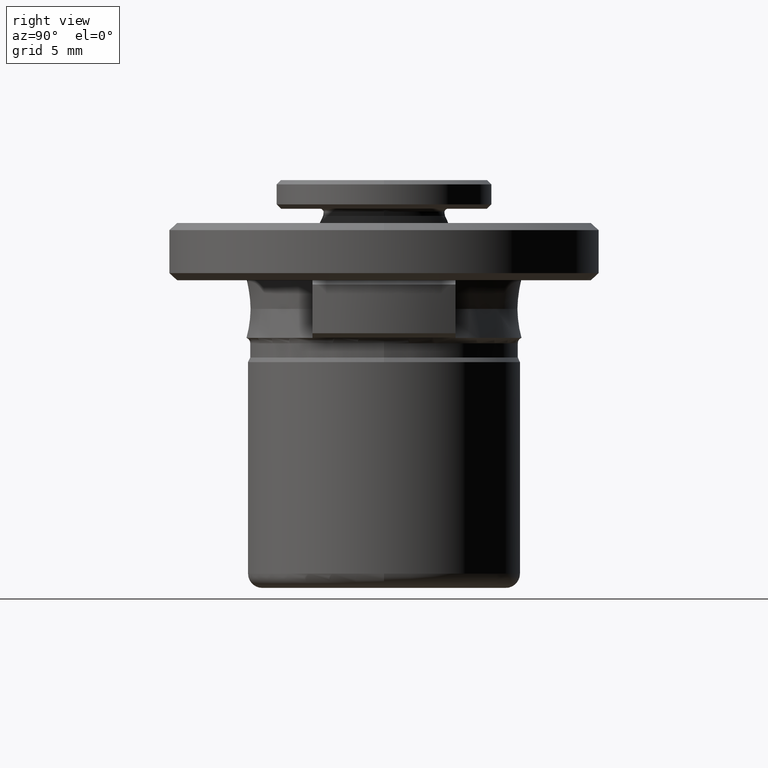
[diagram: clean part render]
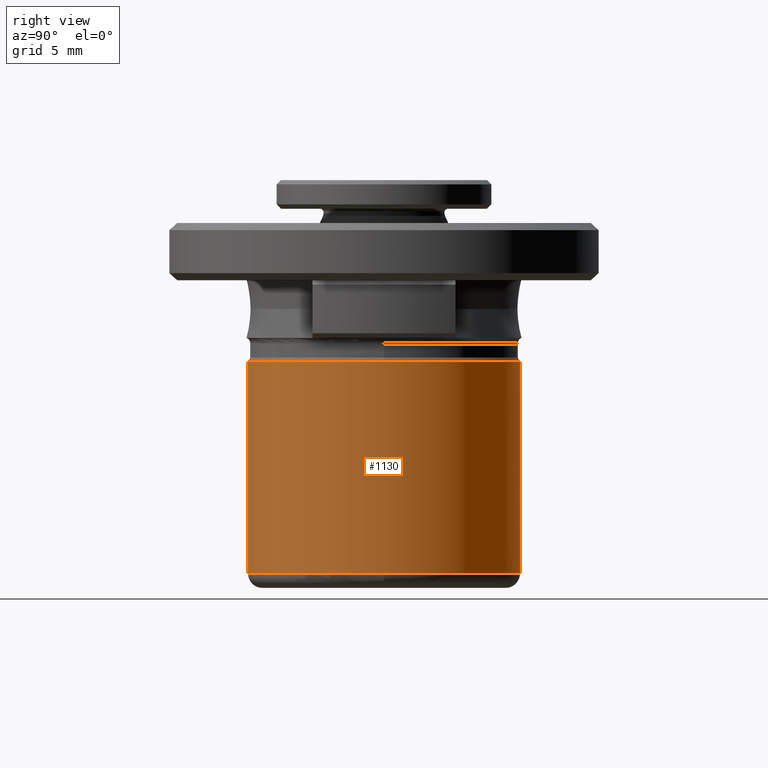
[diagram: same view with one face highlighted and labeled with its STEP entity id]
A machine part, right view. The second image highlights one B-rep face of the part: STEP entity #1130.
In plain terms, the highlighted cylindrical surface (partial cylindrical patch) has radius 9.5 mm, axis along (0, -0, 1).
Its self-contained STEP definition (entity closure, byte-faithful):
#50 = EDGE_CURVE ( 'NONE', #321, #683, #55, .T. ) ;
#55 = CIRCLE ( 'NONE', #595, 9.500000000000000000 ) ;
#94 = EDGE_CURVE ( 'NONE', #705, #1366, #445, .T. ) ;
#122 = CARTESIAN_POINT ( 'NONE',  ( 1.163414459189985500E-015, 9.500000000000000000, 3.030000000000088200 ) ) ;
#144 = CARTESIAN_POINT ( 'NONE',  ( 9.500000000000001800, 2.364620801796248300E-016, -11.75000000000000000 ) ) ;
#175 = CARTESIAN_POINT ( 'NONE',  ( 0.0000000000000000000, 2.364620801796248300E-016, -11.75000000000000000 ) ) ;
#183 = DIRECTION ( 'NONE',  ( 1.000000000000000000, 0.0000000000000000000, 0.0000000000000000000 ) ) ;
#232 = EDGE_CURVE ( 'NONE', #683, #468, #1187, .T. ) ;
#286 = ORIENTED_EDGE ( 'NONE', *, *, #50, .T. ) ;
#311 = VERTEX_POINT ( 'NONE', #122 ) ;
#321 = VERTEX_POINT ( 'NONE', #396 ) ;
#339 = CARTESIAN_POINT ( 'NONE',  ( 0.0000000000000000000, 0.0000000000000000000, -6.570177872000000400 ) ) ;
#368 = DIRECTION ( 'NONE',  ( -1.000000000000000000, 0.0000000000000000000, -9.312726028928122700E-015 ) ) ;
#373 = ORIENTED_EDGE ( 'NONE', *, *, #232, .T. ) ;
#396 = CARTESIAN_POINT ( 'NONE',  ( 0.0000000000000000000, -9.500000000000000000, -11.75000000000000000 ) ) ;
#404 = VECTOR ( 'NONE', #905, 1000.000000000000000 ) ;
#414 = ORIENTED_EDGE ( 'NONE', *, *, #1063, .T. ) ;
#441 = AXIS2_PLACEMENT_3D ( 'NONE', #175, #1019, #183 ) ;
#445 = CIRCLE ( 'NONE', #1277, 9.500000000000000000 ) ;
#468 = VERTEX_POINT ( 'NONE', #908 ) ;
#493 = AXIS2_PLACEMENT_3D ( 'NONE', #339, #1674, #844 ) ;
#564 = CARTESIAN_POINT ( 'NONE',  ( 1.163414459189985500E-015, 9.500000000000000000, -6.570177872000000400 ) ) ;
#595 = AXIS2_PLACEMENT_3D ( 'NONE', #1960, #1051, #2035 ) ;
#644 = ORIENTED_EDGE ( 'NONE', *, *, #1073, .T. ) ;
#683 = VERTEX_POINT ( 'NONE', #144 ) ;
#705 = VERTEX_POINT ( 'NONE', #1652 ) ;
#736 = DIRECTION ( 'NONE',  ( 0.0000000000000000000, 0.0000000000000000000, -1.000000000000000000 ) ) ;
#742 = FACE_OUTER_BOUND ( 'NONE', #1614, .T. ) ;
#844 = DIRECTION ( 'NONE',  ( 0.0000000000000000000, -1.000000000000000000, 0.0000000000000000000 ) ) ;
#852 = CIRCLE ( 'NONE', #1665, 9.500000000000000000 ) ;
#905 = DIRECTION ( 'NONE',  ( 0.0000000000000000000, -4.565061778886334800E-017, 1.000000000000000000 ) ) ;
#908 = CARTESIAN_POINT ( 'NONE',  ( 1.163414459189985500E-015, 9.500000000000000000, -11.75000000000000000 ) ) ;
#1019 = DIRECTION ( 'NONE',  ( 0.0000000000000000000, 0.0000000000000000000, 1.000000000000000000 ) ) ;
#1051 = DIRECTION ( 'NONE',  ( 0.0000000000000000000, 0.0000000000000000000, 1.000000000000000000 ) ) ;
#1063 = EDGE_CURVE ( 'NONE', #468, #311, #1808, .T. ) ;
#1073 = EDGE_CURVE ( 'NONE', #311, #705, #852, .T. ) ;
#1130 = ADVANCED_FACE ( 'NONE', ( #742 ), #1583, .T. ) ;
#1173 = CARTESIAN_POINT ( 'NONE',  ( 0.0000000000000000000, -9.500000000000000000, -6.570177872000000400 ) ) ;
#1187 = CIRCLE ( 'NONE', #441, 9.500000000000000000 ) ;
#1277 = AXIS2_PLACEMENT_3D ( 'NONE', #1712, #1539, #368 ) ;
#1326 = LINE ( 'NONE', #1173, #1660 ) ;
#1338 = DIRECTION ( 'NONE',  ( 0.0000000000000000000, -4.565061778886334800E-017, 1.000000000000000000 ) ) ;
#1366 = VERTEX_POINT ( 'NONE', #1970 ) ;
#1507 = EDGE_CURVE ( 'NONE', #321, #1366, #1326, .T. ) ;
#1539 = DIRECTION ( 'NONE',  ( 0.0000000000000000000, 0.0000000000000000000, -1.000000000000000000 ) ) ;
#1583 = CYLINDRICAL_SURFACE ( 'NONE', #493, 9.500000000000000000 ) ;
#1614 = EDGE_LOOP ( 'NONE', ( #286, #373, #414, #644, #1631, #1823 ) ) ;
#1631 = ORIENTED_EDGE ( 'NONE', *, *, #94, .T. ) ;
#1652 = CARTESIAN_POINT ( 'NONE',  ( 9.499999999999957400, 1.163414459189980600E-015, 3.030000000000088200 ) ) ;
#1660 = VECTOR ( 'NONE', #1338, 1000.000000000000000 ) ;
#1665 = AXIS2_PLACEMENT_3D ( 'NONE', #1752, #736, #1922 ) ;
#1674 = DIRECTION ( 'NONE',  ( 0.0000000000000000000, -4.565061778886334800E-017, 1.000000000000000000 ) ) ;
#1712 = CARTESIAN_POINT ( 'NONE',  ( 0.0000000000000000000, 0.0000000000000000000, 3.030000000000088200 ) ) ;
#1752 = CARTESIAN_POINT ( 'NONE',  ( 0.0000000000000000000, 0.0000000000000000000, 3.030000000000088200 ) ) ;
#1808 = LINE ( 'NONE', #564, #404 ) ;
#1823 = ORIENTED_EDGE ( 'NONE', *, *, #1507, .F. ) ;
#1922 = DIRECTION ( 'NONE',  ( -1.000000000000000000, 0.0000000000000000000, -9.312726028928122700E-015 ) ) ;
#1960 = CARTESIAN_POINT ( 'NONE',  ( 0.0000000000000000000, 2.364620801796248300E-016, -11.75000000000000000 ) ) ;
#1970 = CARTESIAN_POINT ( 'NONE',  ( 0.0000000000000000000, -9.500000000000000000, 3.030000000000088200 ) ) ;
#2035 = DIRECTION ( 'NONE',  ( 1.000000000000000000, 0.0000000000000000000, 0.0000000000000000000 ) ) ;